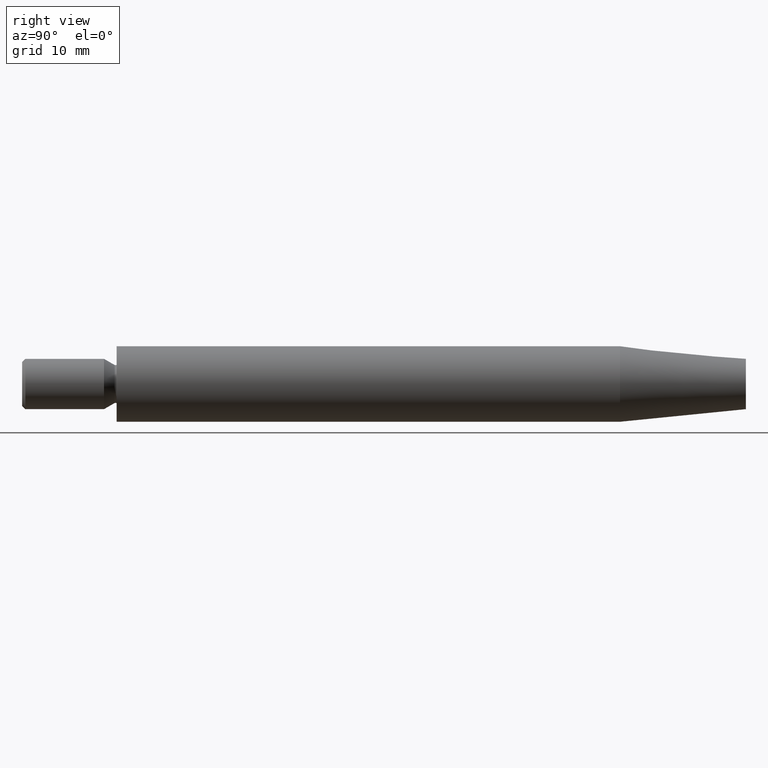
[diagram: clean part render]
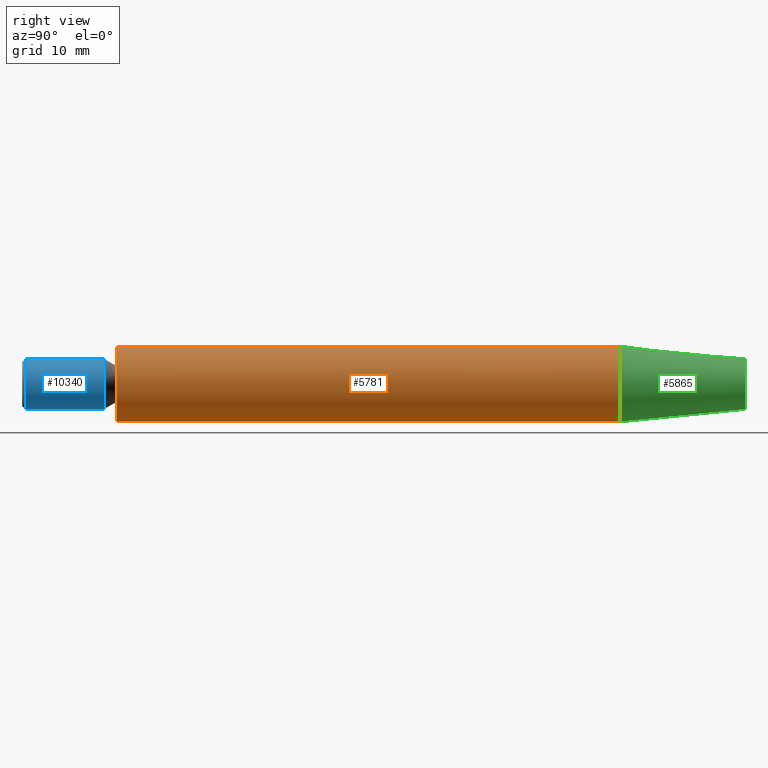
[diagram: same view with three faces highlighted in distinct colors, each labeled with its STEP entity id]
A machine part, right view with three faces highlighted in distinct colors.
Their STEP definitions:

[orange] entity #5781 — the highlighted cylindrical surface (bore or boss wall) has radius 6 mm, axis along (-0, -1, -0).
#550 = CARTESIAN_POINT ( 'NONE',  ( 0.000000000000000000, 80.00000000000000000, 0.000000000000000000 ) ) ;
#702 = VERTEX_POINT ( 'NONE', #2287 ) ;
#1355 = DIRECTION ( 'NONE',  ( -0.000000000000000000, -1.000000000000000000, -0.000000000000000000 ) ) ;
#2287 = CARTESIAN_POINT ( 'NONE',  ( 0.000000000000000000, 80.00000000000000000, -5.999999999999995559 ) ) ;
#2330 = DIRECTION ( 'NONE',  ( 0.000000000000000000, 0.000000000000000000, -1.000000000000000000 ) ) ;
#3383 = CARTESIAN_POINT ( 'NONE',  ( 0.000000000000000000, 0.000000000000000000, -6.000000000000003553 ) ) ;
#3452 = AXIS2_PLACEMENT_3D ( 'NONE', #9606, #10594, #5646 ) ;
#3889 = CIRCLE ( 'NONE', #3452, 6.000000000000003553 ) ;
#4900 = AXIS2_PLACEMENT_3D ( 'NONE', #550, #9467, #5469 ) ;
#4988 = EDGE_CURVE ( 'NONE', #702, #702, #8321, .T. ) ;
#5469 = DIRECTION ( 'NONE',  ( 0.000000000000000000, 0.000000000000000000, -1.000000000000000000 ) ) ;
#5646 = DIRECTION ( 'NONE',  ( 0.000000000000000000, 0.000000000000000000, -1.000000000000000000 ) ) ;
#5674 = FACE_OUTER_BOUND ( 'NONE', #6602, .T. ) ;
#5781 = ADVANCED_FACE ( 'NONE', ( #5674, #11430 ), #7363, .T. ) ;
#5790 = ORIENTED_EDGE ( 'NONE', *, *, #4988, .T. ) ;
#5966 = EDGE_LOOP ( 'NONE', ( #10314 ) ) ;
#6602 = EDGE_LOOP ( 'NONE', ( #5790 ) ) ;
#7363 = CYLINDRICAL_SURFACE ( 'NONE', #11879, 6.000000000000000000 ) ;
#8296 = CARTESIAN_POINT ( 'NONE',  ( 0.000000000000000000, -15.00000000000000355, 0.000000000000000000 ) ) ;
#8321 = CIRCLE ( 'NONE', #4900, 5.999999999999995559 ) ;
#9467 = DIRECTION ( 'NONE',  ( -0.000000000000000000, -1.000000000000000000, -0.000000000000000000 ) ) ;
#9575 = EDGE_CURVE ( 'NONE', #11741, #11741, #3889, .T. ) ;
#9606 = CARTESIAN_POINT ( 'NONE',  ( 0.000000000000000000, 0.000000000000000000, 0.000000000000000000 ) ) ;
#10314 = ORIENTED_EDGE ( 'NONE', *, *, #9575, .F. ) ;
#10594 = DIRECTION ( 'NONE',  ( -0.000000000000000000, -1.000000000000000000, -0.000000000000000000 ) ) ;
#11430 = FACE_OUTER_BOUND ( 'NONE', #5966, .T. ) ;
#11741 = VERTEX_POINT ( 'NONE', #3383 ) ;
#11879 = AXIS2_PLACEMENT_3D ( 'NONE', #8296, #1355, #2330 ) ;

[blue] entity #10340 — the highlighted cylindrical surface (bore or boss wall) has radius 4 mm, axis along (-0, -1, -0).
#85 = CIRCLE ( 'NONE', #12540, 4.000000000000000000 ) ;
#1657 = CARTESIAN_POINT ( 'NONE',  ( 0.000000000000000000, -15.00000000000000355, 0.000000000000000000 ) ) ;
#2035 = DIRECTION ( 'NONE',  ( 0.000000000000000000, 0.000000000000000000, -1.000000000000000000 ) ) ;
#2704 = VERTEX_POINT ( 'NONE', #11396 ) ;
#3037 = CARTESIAN_POINT ( 'NONE',  ( 0.000000000000000000, -14.50000000000000533, 0.000000000000000000 ) ) ;
#3575 = EDGE_CURVE ( 'NONE', #4591, #4591, #85, .T. ) ;
#3780 = AXIS2_PLACEMENT_3D ( 'NONE', #1657, #5744, #10606 ) ;
#3921 = DIRECTION ( 'NONE',  ( -0.000000000000000000, -1.000000000000000000, -0.000000000000000000 ) ) ;
#4182 = EDGE_LOOP ( 'NONE', ( #5787 ) ) ;
#4591 = VERTEX_POINT ( 'NONE', #8294 ) ;
#5744 = DIRECTION ( 'NONE',  ( -0.000000000000000000, -1.000000000000000000, -0.000000000000000000 ) ) ;
#5787 = ORIENTED_EDGE ( 'NONE', *, *, #8558, .T. ) ;
#5923 = DIRECTION ( 'NONE',  ( 0.000000000000000000, 0.000000000000000000, -1.000000000000000000 ) ) ;
#7812 = EDGE_LOOP ( 'NONE', ( #9452 ) ) ;
#7834 = CARTESIAN_POINT ( 'NONE',  ( 0.000000000000000000, -2.000000000000000000, 0.000000000000000000 ) ) ;
#8294 = CARTESIAN_POINT ( 'NONE',  ( 0.000000000000000000, -2.000000000000000000, -4.000000000000000000 ) ) ;
#8297 = FACE_OUTER_BOUND ( 'NONE', #4182, .T. ) ;
#8558 = EDGE_CURVE ( 'NONE', #2704, #2704, #10279, .T. ) ;
#9452 = ORIENTED_EDGE ( 'NONE', *, *, #3575, .T. ) ;
#9952 = DIRECTION ( 'NONE',  ( 0.000000000000000000, 1.000000000000000000, 0.000000000000000000 ) ) ;
#10279 = CIRCLE ( 'NONE', #11870, 4.000000000000000888 ) ;
#10340 = ADVANCED_FACE ( 'NONE', ( #8297, #10634 ), #12643, .T. ) ;
#10606 = DIRECTION ( 'NONE',  ( 0.000000000000000000, 0.000000000000000000, -1.000000000000000000 ) ) ;
#10634 = FACE_OUTER_BOUND ( 'NONE', #7812, .T. ) ;
#11396 = CARTESIAN_POINT ( 'NONE',  ( 0.000000000000000000, -14.50000000000000533, -4.000000000000000888 ) ) ;
#11870 = AXIS2_PLACEMENT_3D ( 'NONE', #3037, #9952, #2035 ) ;
#12540 = AXIS2_PLACEMENT_3D ( 'NONE', #7834, #3921, #5923 ) ;
#12643 = CYLINDRICAL_SURFACE ( 'NONE', #3780, 4.000000000000000888 ) ;

[green] entity #5865 — the highlighted conical surface has half-angle 5.711 deg.
#550 = CARTESIAN_POINT ( 'NONE',  ( 0.000000000000000000, 80.00000000000000000, 0.000000000000000000 ) ) ;
#702 = VERTEX_POINT ( 'NONE', #2287 ) ;
#1483 = VERTEX_POINT ( 'NONE', #12290 ) ;
#1515 = ORIENTED_EDGE ( 'NONE', *, *, #12682, .T. ) ;
#1568 = CARTESIAN_POINT ( 'NONE',  ( 0.000000000000000000, 80.00000000000000000, 0.000000000000000000 ) ) ;
#1575 = CARTESIAN_POINT ( 'NONE',  ( 0.000000000000000000, 99.99999999999998579, 0.000000000000000000 ) ) ;
#1794 = ORIENTED_EDGE ( 'NONE', *, *, #4988, .F. ) ;
#2287 = CARTESIAN_POINT ( 'NONE',  ( 0.000000000000000000, 80.00000000000000000, -5.999999999999995559 ) ) ;
#4559 = DIRECTION ( 'NONE',  ( -0.000000000000000000, -1.000000000000000000, -0.000000000000000000 ) ) ;
#4741 = CONICAL_SURFACE ( 'NONE', #10726, 5.999999999999995559, 0.09966865249116185765 ) ;
#4900 = AXIS2_PLACEMENT_3D ( 'NONE', #550, #9467, #5469 ) ;
#4988 = EDGE_CURVE ( 'NONE', #702, #702, #8321, .T. ) ;
#5469 = DIRECTION ( 'NONE',  ( 0.000000000000000000, 0.000000000000000000, -1.000000000000000000 ) ) ;
#5865 = ADVANCED_FACE ( 'NONE', ( #10326, #9406 ), #4741, .T. ) ;
#7157 = EDGE_LOOP ( 'NONE', ( #1515 ) ) ;
#8321 = CIRCLE ( 'NONE', #4900, 5.999999999999995559 ) ;
#9406 = FACE_OUTER_BOUND ( 'NONE', #11444, .T. ) ;
#9467 = DIRECTION ( 'NONE',  ( -0.000000000000000000, -1.000000000000000000, -0.000000000000000000 ) ) ;
#10326 = FACE_BOUND ( 'NONE', #7157, .T. ) ;
#10468 = DIRECTION ( 'NONE',  ( 0.000000000000000000, 0.000000000000000000, -1.000000000000000000 ) ) ;
#10476 = DIRECTION ( 'NONE',  ( 0.000000000000000000, 0.000000000000000000, -1.000000000000000000 ) ) ;
#10726 = AXIS2_PLACEMENT_3D ( 'NONE', #1568, #4559, #10468 ) ;
#10946 = AXIS2_PLACEMENT_3D ( 'NONE', #1575, #12518, #10476 ) ;
#11444 = EDGE_LOOP ( 'NONE', ( #1794 ) ) ;
#11901 = CIRCLE ( 'NONE', #10946, 4.000000000000000000 ) ;
#12290 = CARTESIAN_POINT ( 'NONE',  ( 0.000000000000000000, 99.99999999999998579, -4.000000000000000000 ) ) ;
#12518 = DIRECTION ( 'NONE',  ( -0.000000000000000000, -1.000000000000000000, -0.000000000000000000 ) ) ;
#12682 = EDGE_CURVE ( 'NONE', #1483, #1483, #11901, .T. ) ;